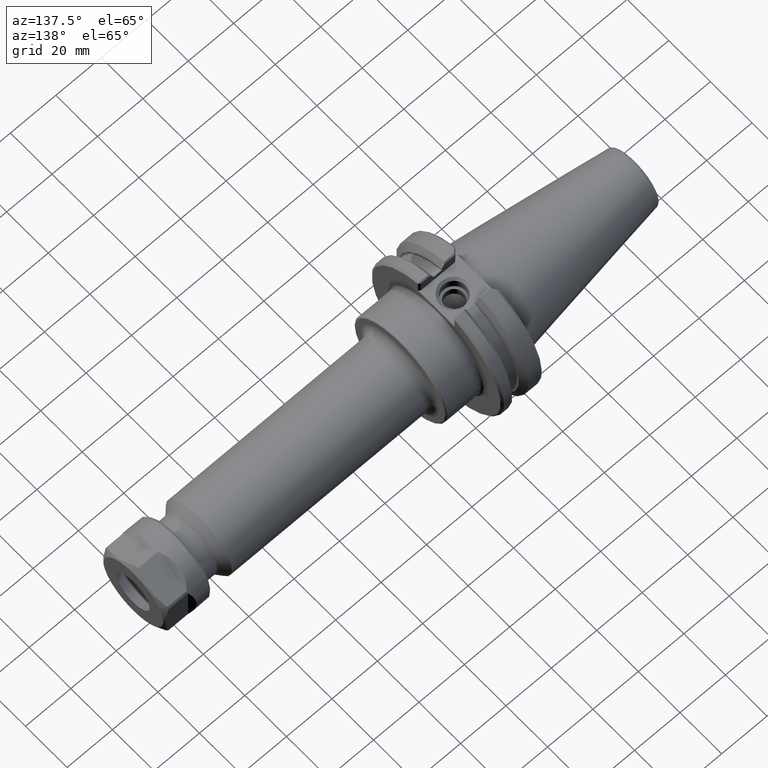
[diagram: clean part render]
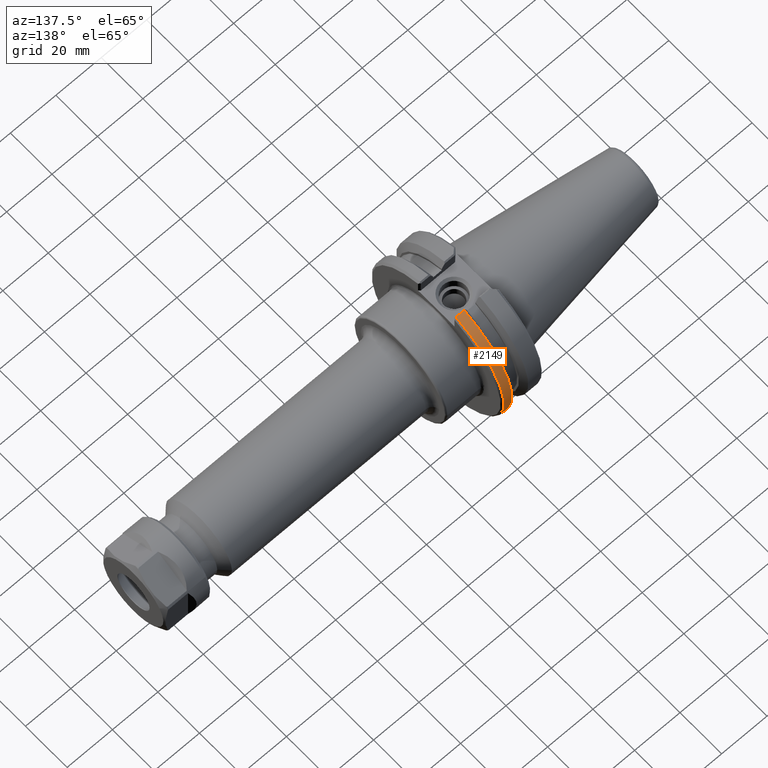
[diagram: same view with one face highlighted and labeled with its STEP entity id]
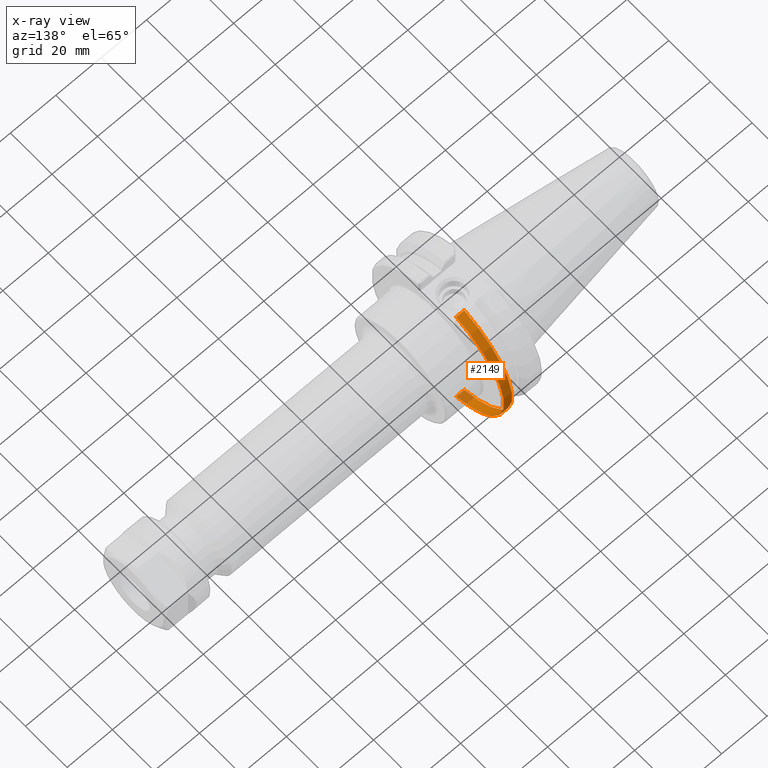
[diagram: x-ray of the same camera — body ghosted, the highlighted face saturated]
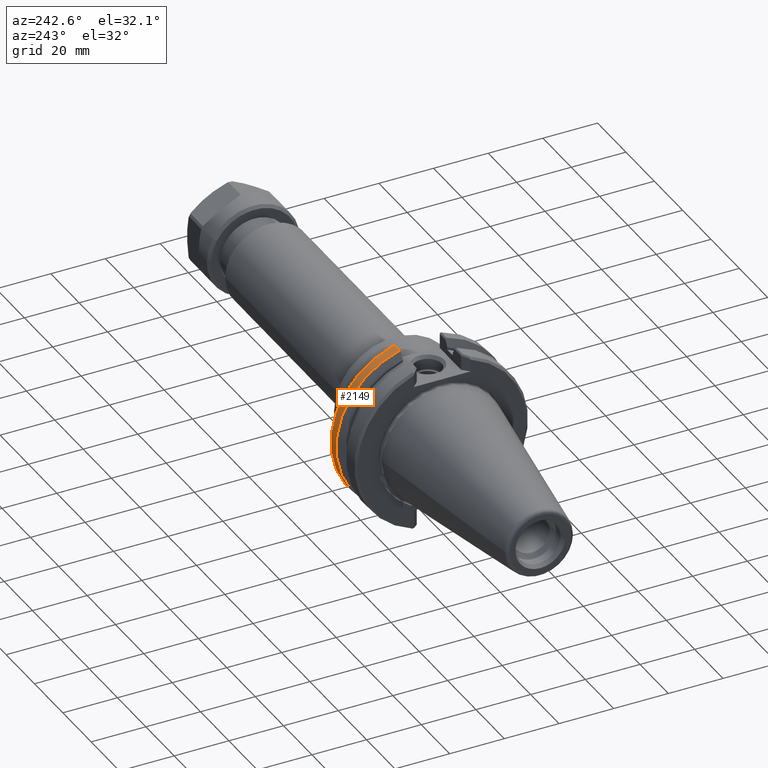
[diagram: same view with one face highlighted and labeled with its STEP entity id]
A machine part, auxiliary view. The second image highlights one B-rep face of the part: STEP entity #2149.
The next image is the same camera in x-ray: the body ghosted, the highlighted face saturated — about 9% of this face is hidden behind the body in this view.
A second angle (auxiliary view) of the same face is appended — the face is thin or edge-on in the first view.
In plain terms, the highlighted cylindrical surface (partial cylindrical patch) has radius 31.75 mm, axis along (1, 0, 0).
Its self-contained STEP definition (entity closure, byte-faithful):
#124=CYLINDRICAL_SURFACE('',#2319,1.25);
#198=LINE('',#4184,#310);
#199=LINE('',#4188,#311);
#310=VECTOR('',#2695,0.142826127773348);
#311=VECTOR('',#2700,0.142826127773348);
#533=FACE_OUTER_BOUND('',#688,.T.);
#688=EDGE_LOOP('',(#1661,#1662,#1663,#1664));
#844=CIRCLE('',#2317,1.25);
#845=CIRCLE('',#2320,1.25);
#1040=VERTEX_POINT('',#4166);
#1041=VERTEX_POINT('',#4170);
#1043=VERTEX_POINT('',#4180);
#1044=VERTEX_POINT('',#4186);
#1279=EDGE_CURVE('',#1040,#1041,#844,.T.);
#1283=EDGE_CURVE('',#1043,#1040,#198,.T.);
#1284=EDGE_CURVE('',#1043,#1044,#845,.T.);
#1285=EDGE_CURVE('',#1041,#1044,#199,.T.);
#1661=ORIENTED_EDGE('',*,*,#1283,.F.);
#1662=ORIENTED_EDGE('',*,*,#1284,.T.);
#1663=ORIENTED_EDGE('',*,*,#1285,.F.);
#1664=ORIENTED_EDGE('',*,*,#1279,.F.);
#2149=ADVANCED_FACE('',(#533),#124,.T.);
#2317=AXIS2_PLACEMENT_3D('',#4171,#2691,#2692);
#2319=AXIS2_PLACEMENT_3D('',#4185,#2696,#2697);
#2320=AXIS2_PLACEMENT_3D('',#4187,#2698,#2699);
#2691=DIRECTION('center_axis',(1.,0.,0.));
#2692=DIRECTION('ref_axis',(-1.62451355720802E-13,1.,0.));
#2695=DIRECTION('',(1.,0.,0.));
#2696=DIRECTION('center_axis',(1.,0.,0.));
#2697=DIRECTION('ref_axis',(-1.62451355720802E-13,1.,0.));
#2698=DIRECTION('center_axis',(1.,0.,0.));
#2699=DIRECTION('ref_axis',(-1.62451355720802E-13,1.,0.));
#2700=DIRECTION('',(-1.,0.,0.));
#4166=CARTESIAN_POINT('',(0.72,0.339628138321779,-1.20297661143519));
#4170=CARTESIAN_POINT('',(0.72,0.339628138321787,1.20297661143518));
#4171=CARTESIAN_POINT('Origin',(0.72,0.,0.));
#4180=CARTESIAN_POINT('',(0.577173872226652,0.339628138321779,-1.20297661143519));
#4184=CARTESIAN_POINT('',(0.3949,0.339628138321779,-1.20297661143519));
#4185=CARTESIAN_POINT('Origin',(0.3949,0.,0.));
#4186=CARTESIAN_POINT('',(0.577173872226652,0.339628138321787,1.20297661143518));
#4187=CARTESIAN_POINT('Origin',(0.577173872226652,0.,0.));
#4188=CARTESIAN_POINT('',(0.3949,0.339628138321787,1.20297661143518));